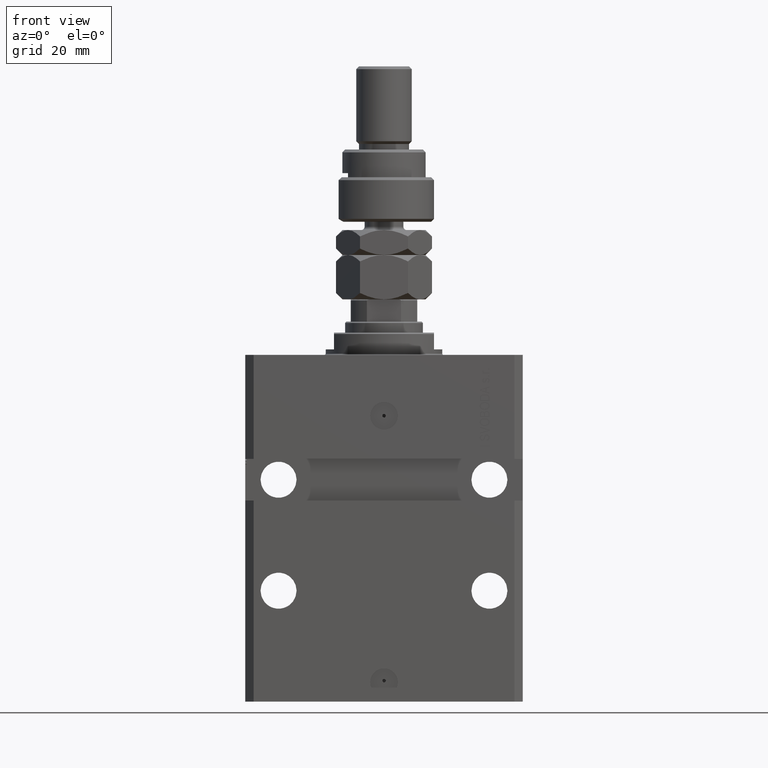
[diagram: clean part render]
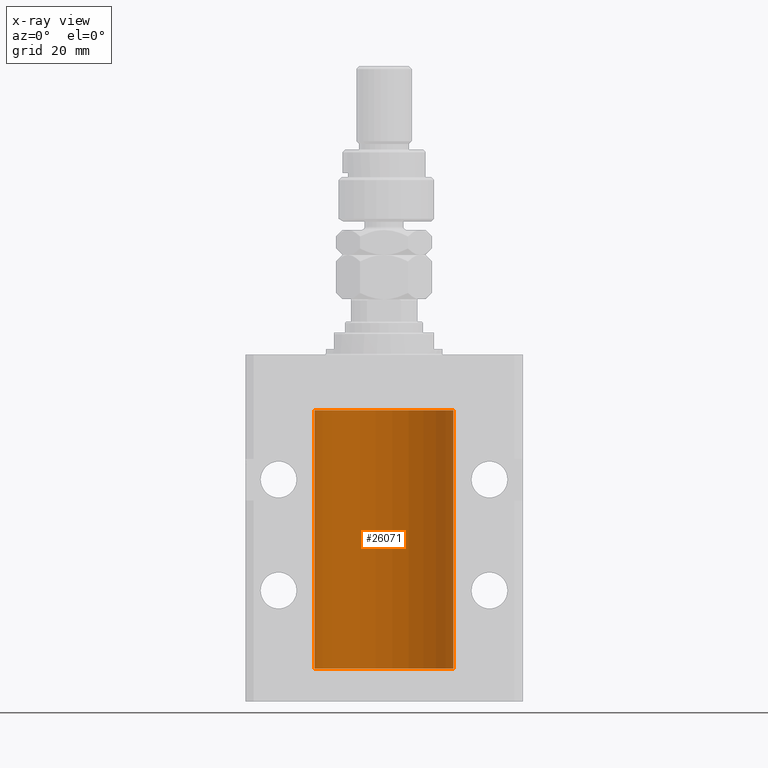
[diagram: x-ray — body ghosted, one internal face saturated and labeled with its STEP entity id]
A machine part, front view, then the same camera in x-ray: the body is ghosted and one INTERNAL B-rep face — a face not visible from any outside direction — is saturated and labeled: STEP entity #26071.
In plain terms, the highlighted cylindrical surface (partial cylindrical patch) has radius 25 mm, axis along (0, 0, 1).
Its self-contained STEP definition (entity closure, byte-faithful):
#46 = CARTESIAN_POINT ( 'NONE',  ( 25.00000000000000355, 0.08261259269783410852, -25.62500000000000355 ) ) ;
#369 = CARTESIAN_POINT ( 'NONE',  ( -25.00000000000000000, 3.061616997868383043E-15, -20.00000000000000355 ) ) ;
#663 = CARTESIAN_POINT ( 'NONE',  ( -24.99957903978827289, 0.1636401650351867743, -24.39126259047981904 ) ) ;
#1288 = VECTOR ( 'NONE', #45036, 1000.000000000000000 ) ;
#1352 = CARTESIAN_POINT ( 'NONE',  ( 25.00000000000008171, 3.486950403907965962E-13, -109.8749999999967315 ) ) ;
#1503 = CARTESIAN_POINT ( 'NONE',  ( 25.00000000000000000, 0.000000000000000000, -113.0999999999999943 ) ) ;
#2140 = B_SPLINE_CURVE_WITH_KNOTS ( 'NONE', 3,
 ( #2824, #34864, #15039, #27285, #19215, #51306 ),
 .UNSPECIFIED., .F., .F.,
 ( 4, 2, 4 ),
 ( 0.0009772773786619218337, 0.001465694572771605777, 0.001954111766881289937 ),
 .UNSPECIFIED. ) ;
#2488 = CARTESIAN_POINT ( 'NONE',  ( 25.00000000000000000, 0.000000000000000000, -20.00000000000000355 ) ) ;
#2724 = VERTEX_POINT ( 'NONE', #16818 ) ;
#2824 = CARTESIAN_POINT ( 'NONE',  ( 24.99218627891505307, 0.6250000000082391871, -110.4999999999990763 ) ) ;
#3325 = CARTESIAN_POINT ( 'NONE',  ( -25.00000000000000000, 3.061616997868383043E-15, -113.0999999999999943 ) ) ;
#3931 = CARTESIAN_POINT ( 'NONE',  ( 24.99218627891505307, 0.6250000000082325258, -24.99999999999907629 ) ) ;
#3968 = VERTEX_POINT ( 'NONE', #42431 ) ;
#3969 = CARTESIAN_POINT ( 'NONE',  ( 24.99711042419772511, 0.3844422150124162108, -110.9994823321251971 ) ) ;
#4136 = CARTESIAN_POINT ( 'NONE',  ( -25.00000000000008171, 3.517566575222595158E-13, -111.1250000000032827 ) ) ;
#4656 = CARTESIAN_POINT ( 'NONE',  ( -24.99999999999998934, 0.1631672031814573320, -25.62499999999985079 ) ) ;
#4817 = ORIENTED_EDGE ( 'NONE', *, *, #8601, .T. ) ;
#5097 = VERTEX_POINT ( 'NONE', #2488 ) ;
#7309 = B_SPLINE_CURVE_WITH_KNOTS ( 'NONE', 3,
 ( #3931, #24491, #19814, #43816, #20325, #11727 ),
 .UNSPECIFIED., .F., .F.,
 ( 4, 2, 4 ),
 ( 0.0009772773786619174969, 0.001465694572771606211, 0.001954111766881294707 ),
 .UNSPECIFIED. ) ;
#7356 = CARTESIAN_POINT ( 'NONE',  ( 25.00000000000000355, 0.08261259269783381709, -111.1250000000000142 ) ) ;
#7550 = CARTESIAN_POINT ( 'NONE',  ( 25.00000000000000000, 0.000000000000000000, -113.0999999999999943 ) ) ;
#7608 = B_SPLINE_CURVE_WITH_KNOTS ( 'NONE', 3,
 ( #51414, #46, #12003, #15924, #43836, #34974, #15660, #31560 ),
 .UNSPECIFIED., .F., .F.,
 ( 4, 2, 2, 4 ),
 ( 3.236698380392818496E-18, 0.0002443193446654800247, 0.0004886386893309567969, 0.0009772773786619174969 ),
 .UNSPECIFIED. ) ;
#7611 = CARTESIAN_POINT ( 'NONE',  ( 24.99218627891524136, 0.6250000000003219647, -110.6631061550482826 ) ) ;
#7912 = LINE ( 'NONE', #40953, #40396 ) ;
#8055 = EDGE_CURVE ( 'NONE', #2724, #41432, #9589, .T. ) ;
#8143 = DIRECTION ( 'NONE',  ( -0.000000000000000000, -0.000000000000000000, 1.000000000000000000 ) ) ;
#8556 = CARTESIAN_POINT ( 'NONE',  ( -24.99402840204668408, 0.5587119681668532012, -25.32511555871104747 ) ) ;
#8601 = EDGE_CURVE ( 'NONE', #41432, #18971, #2140, .T. ) ;
#8730 = CARTESIAN_POINT ( 'NONE',  ( -24.99218772708281477, 0.6249420913990341164, -24.83671206966754852 ) ) ;
#9589 = B_SPLINE_CURVE_WITH_KNOTS ( 'NONE', 3,
 ( #39170, #7356, #27924, #22726, #3969, #19603, #7611, #34737 ),
 .UNSPECIFIED., .F., .F.,
 ( 4, 2, 2, 4 ),
 ( 2.356374505740030593E-18, 0.0002443193446654823016, 0.0004886386893309623263, 0.0009772773786619218337 ),
 .UNSPECIFIED. ) ;
#9598 = VECTOR ( 'NONE', #23444, 1000.000000000000000 ) ;
#10096 = B_SPLINE_CURVE_WITH_KNOTS ( 'NONE', 3,
 ( #18810, #34716, #22971, #50633, #25867, #21950, #35498, #19835, #31820, #35748, #39666, #19065 ),
 .UNSPECIFIED., .F., .F.,
 ( 4, 2, 2, 2, 2, 4 ),
 ( 1.767227884924492832E-18, 0.0002442639708601802699, 0.0004885279417203586966, 0.0009770558834406861681, 0.001465583825161013640, 0.001954111766881341111 ),
 .UNSPECIFIED. ) ;
#10329 = CARTESIAN_POINT ( 'NONE',  ( -25.00000000000000000, 3.061616997868383043E-15, -113.0999999999999943 ) ) ;
#11268 = VECTOR ( 'NONE', #42271, 1000.000000000000000 ) ;
#11727 = CARTESIAN_POINT ( 'NONE',  ( 25.00000000000008171, 3.486950283966777142E-13, -24.37499999999673150 ) ) ;
#12003 = CARTESIAN_POINT ( 'NONE',  ( 24.99957883295564187, 0.1636780489658729298, -25.60872961334235143 ) ) ;
#12059 = ORIENTED_EDGE ( 'NONE', *, *, #13821, .T. ) ;
#12074 = DIRECTION ( 'NONE',  ( -0.000000000000000000, -0.000000000000000000, 1.000000000000000000 ) ) ;
#12278 = ORIENTED_EDGE ( 'NONE', *, *, #51031, .T. ) ;
#12625 = CARTESIAN_POINT ( 'NONE',  ( -24.99405295648008263, 0.5573304927633336847, -24.67348832933669200 ) ) ;
#13444 = CARTESIAN_POINT ( 'NONE',  ( -25.00000000000000000, -9.603917560234690571E-15, -24.37500000000000000 ) ) ;
#13821 = EDGE_CURVE ( 'NONE', #43799, #27601, #7309, .T. ) ;
#13969 = ORIENTED_EDGE ( 'NONE', *, *, #50933, .F. ) ;
#14353 = ORIENTED_EDGE ( 'NONE', *, *, #44881, .F. ) ;
#14668 = VERTEX_POINT ( 'NONE', #4136 ) ;
#14677 = DIRECTION ( 'NONE',  ( 1.000000000000000000, 0.000000000000000000, 0.000000000000000000 ) ) ;
#15039 = CARTESIAN_POINT ( 'NONE',  ( 24.99403021173655404, 0.5586305782632625672, -110.1747611144148635 ) ) ;
#15351 = VERTEX_POINT ( 'NONE', #28948 ) ;
#15660 = CARTESIAN_POINT ( 'NONE',  ( 24.99218627891525557, 0.6250000000003174128, -25.16310615504829329 ) ) ;
#15924 = CARTESIAN_POINT ( 'NONE',  ( 24.99812887437769504, 0.3150953964769009352, -25.54594609348566436 ) ) ;
#16090 = CARTESIAN_POINT ( 'NONE',  ( 25.00000000000000000, 0.000000000000000000, -113.0999999999999943 ) ) ;
#16117 = DIRECTION ( 'NONE',  ( -0.000000000000000000, -0.000000000000000000, 1.000000000000000000 ) ) ;
#16818 = CARTESIAN_POINT ( 'NONE',  ( 25.00000000000000000, -2.424731304940744339E-15, -111.1250000000000000 ) ) ;
#17442 = ORIENTED_EDGE ( 'NONE', *, *, #22521, .F. ) ;
#17662 = CARTESIAN_POINT ( 'NONE',  ( -25.00000000000008171, 3.517566451145503275E-13, -25.62500000000326850 ) ) ;
#17912 = CIRCLE ( 'NONE', #49568, 25.00000000000000000 ) ;
#18810 = CARTESIAN_POINT ( 'NONE',  ( -25.00000000000000000, -2.540720905424995806E-14, -109.8750000000000000 ) ) ;
#18971 = VERTEX_POINT ( 'NONE', #1352 ) ;
#19006 = CYLINDRICAL_SURFACE ( 'NONE', #39966, 25.00000000000000000 ) ;
#19065 = CARTESIAN_POINT ( 'NONE',  ( -25.00000000000008171, 3.517566575222595158E-13, -111.1250000000032827 ) ) ;
#19215 = CARTESIAN_POINT ( 'NONE',  ( 24.99999999999999645, 0.1631302137355208348, -109.8750000000001563 ) ) ;
#19517 = VERTEX_POINT ( 'NONE', #3325 ) ;
#19603 = CARTESIAN_POINT ( 'NONE',  ( 24.99405112861447265, 0.5574133879603476727, -110.8263877786898064 ) ) ;
#19693 = ORIENTED_EDGE ( 'NONE', *, *, #51464, .T. ) ;
#19814 = CARTESIAN_POINT ( 'NONE',  ( 24.99403021173655404, 0.5586305782632567940, -24.67476111441487063 ) ) ;
#19835 = CARTESIAN_POINT ( 'NONE',  ( -24.99218483271614843, 0.6250578298876445782, -110.6628443277814426 ) ) ;
#20136 = LINE ( 'NONE', #31351, #31776 ) ;
#20325 = CARTESIAN_POINT ( 'NONE',  ( 24.99999999999999645, 0.1631302137355182535, -24.37500000000015277 ) ) ;
#21280 = LINE ( 'NONE', #1503, #1288 ) ;
#21950 = CARTESIAN_POINT ( 'NONE',  ( -24.99405295648007908, 0.5573304927633258021, -110.1734883293366920 ) ) ;
#22521 = EDGE_CURVE ( 'NONE', #27202, #43558, #42168, .T. ) ;
#22726 = CARTESIAN_POINT ( 'NONE',  ( 24.99812887437770570, 0.3150953964769092064, -111.0459460934856821 ) ) ;
#22971 = CARTESIAN_POINT ( 'NONE',  ( -24.99957903978828000, 0.1636401650351726467, -109.8912625904798546 ) ) ;
#23164 = CARTESIAN_POINT ( 'NONE',  ( 0.000000000000000000, 0.000000000000000000, -113.0999999999999943 ) ) ;
#23444 = DIRECTION ( 'NONE',  ( -0.000000000000000000, -0.000000000000000000, 1.000000000000000000 ) ) ;
#24126 = EDGE_CURVE ( 'NONE', #3968, #14668, #10096, .T. ) ;
#24160 = EDGE_CURVE ( 'NONE', #15351, #43799, #7608, .T. ) ;
#24491 = CARTESIAN_POINT ( 'NONE',  ( 24.99218627891526268, 0.6249999999996038724, -24.83696777940135192 ) ) ;
#24597 = CARTESIAN_POINT ( 'NONE',  ( 25.00000000000008171, 3.486950283966777142E-13, -24.37499999999673150 ) ) ;
#24840 = EDGE_CURVE ( 'NONE', #27202, #25051, #26163, .T. ) ;
#25051 = VERTEX_POINT ( 'NONE', #17662 ) ;
#25422 = AXIS2_PLACEMENT_3D ( 'NONE', #49650, #46507, #14677 ) ;
#25867 = CARTESIAN_POINT ( 'NONE',  ( -24.99711159039963704, 0.3843660423108738455, -110.0004619305507561 ) ) ;
#25976 = DIRECTION ( 'NONE',  ( -0.000000000000000000, -0.000000000000000000, 1.000000000000000000 ) ) ;
#26071 = ADVANCED_FACE ( 'NONE', ( #43774 ), #19006, .F. ) ;
#26163 = B_SPLINE_CURVE_WITH_KNOTS ( 'NONE', 3,
 ( #37402, #44199, #663, #32441, #48364, #12625, #8730, #36630, #8556, #32524, #4656, #47238 ),
 .UNSPECIFIED., .F., .F.,
 ( 4, 2, 2, 2, 2, 4 ),
 ( 4.396951630244787669E-19, 0.0002442639708601663379, 0.0004885279417203322420, 0.0009770558834406712061, 0.001465583825161009953, 0.001954111766881348917 ),
 .UNSPECIFIED. ) ;
#27173 = CARTESIAN_POINT ( 'NONE',  ( 24.99218627891505307, 0.6250000000082391871, -110.4999999999990763 ) ) ;
#27202 = VERTEX_POINT ( 'NONE', #13444 ) ;
#27282 = VECTOR ( 'NONE', #25976, 1000.000000000000000 ) ;
#27285 = CARTESIAN_POINT ( 'NONE',  ( 24.99815573945175373, 0.3253059702579679247, -109.9414084843269279 ) ) ;
#27601 = VERTEX_POINT ( 'NONE', #24597 ) ;
#27924 = CARTESIAN_POINT ( 'NONE',  ( 24.99957883295564187, 0.1636780489658792026, -111.1087296133423479 ) ) ;
#28160 = ORIENTED_EDGE ( 'NONE', *, *, #24160, .T. ) ;
#28948 = CARTESIAN_POINT ( 'NONE',  ( 25.00000000000000000, 2.149100713798383821E-15, -25.62500000000000355 ) ) ;
#30256 = CARTESIAN_POINT ( 'NONE',  ( -25.00000000000000000, 3.061616997868383043E-15, -113.0999999999999943 ) ) ;
#30674 = ORIENTED_EDGE ( 'NONE', *, *, #43584, .F. ) ;
#31351 = CARTESIAN_POINT ( 'NONE',  ( 25.00000000000000000, 0.000000000000000000, -113.0999999999999943 ) ) ;
#31560 = CARTESIAN_POINT ( 'NONE',  ( 24.99218627891505307, 0.6250000000082325258, -24.99999999999907629 ) ) ;
#31776 = VECTOR ( 'NONE', #8143, 1000.000000000000000 ) ;
#31820 = CARTESIAN_POINT ( 'NONE',  ( -24.99402840204668408, 0.5587119681668493154, -110.8251155587110475 ) ) ;
#32252 = ORIENTED_EDGE ( 'NONE', *, *, #24840, .T. ) ;
#32441 = CARTESIAN_POINT ( 'NONE',  ( -24.99812965334069403, 0.3150303239408847600, -24.45401901831676383 ) ) ;
#32524 = CARTESIAN_POINT ( 'NONE',  ( -24.99815474281801997, 0.3253832813992120210, -25.55855609393753269 ) ) ;
#32676 = CARTESIAN_POINT ( 'NONE',  ( 0.000000000000000000, 0.000000000000000000, -20.00000000000000355 ) ) ;
#33965 = EDGE_CURVE ( 'NONE', #18971, #15351, #20136, .T. ) ;
#34298 = VERTEX_POINT ( 'NONE', #16090 ) ;
#34716 = CARTESIAN_POINT ( 'NONE',  ( -25.00000000000000000, 0.08259386895069686929, -109.8749999999999574 ) ) ;
#34737 = CARTESIAN_POINT ( 'NONE',  ( 24.99218627891505307, 0.6250000000082391871, -110.4999999999990763 ) ) ;
#34864 = CARTESIAN_POINT ( 'NONE',  ( 24.99218627891526268, 0.6249999999996124211, -110.3369677794013626 ) ) ;
#34974 = CARTESIAN_POINT ( 'NONE',  ( 24.99405112861446909, 0.5574133879603399011, -25.32638777868982416 ) ) ;
#35204 = LINE ( 'NONE', #30256, #11268 ) ;
#35498 = CARTESIAN_POINT ( 'NONE',  ( -24.99218772708281122, 0.6249420913990271220, -110.3367120696675414 ) ) ;
#35748 = CARTESIAN_POINT ( 'NONE',  ( -24.99815474281802352, 0.3253832813992116324, -111.0585560939375114 ) ) ;
#36347 = DIRECTION ( 'NONE',  ( 0.000000000000000000, 0.000000000000000000, 1.000000000000000000 ) ) ;
#36630 = CARTESIAN_POINT ( 'NONE',  ( -24.99218483271614843, 0.6250578298876515726, -25.16284432778144975 ) ) ;
#37402 = CARTESIAN_POINT ( 'NONE',  ( -25.00000000000000000, -9.603917560234690571E-15, -24.37500000000000000 ) ) ;
#39170 = CARTESIAN_POINT ( 'NONE',  ( 25.00000000000000000, -2.424731304940744339E-15, -111.1250000000000000 ) ) ;
#39666 = CARTESIAN_POINT ( 'NONE',  ( -24.99999999999998579, 0.1631672031814571655, -111.1249999999998153 ) ) ;
#39966 = AXIS2_PLACEMENT_3D ( 'NONE', #23164, #16117, #47188 ) ;
#40396 = VECTOR ( 'NONE', #12074, 1000.000000000000000 ) ;
#40775 = DIRECTION ( 'NONE',  ( 1.000000000000000000, 0.000000000000000000, 0.000000000000000000 ) ) ;
#40953 = CARTESIAN_POINT ( 'NONE',  ( -25.00000000000000000, 3.061616997868383043E-15, -113.0999999999999943 ) ) ;
#41432 = VERTEX_POINT ( 'NONE', #27173 ) ;
#42168 = LINE ( 'NONE', #10329, #27282 ) ;
#42271 = DIRECTION ( 'NONE',  ( -0.000000000000000000, -0.000000000000000000, 1.000000000000000000 ) ) ;
#42431 = CARTESIAN_POINT ( 'NONE',  ( -25.00000000000000000, -2.540720905424995806E-14, -109.8750000000000000 ) ) ;
#43406 = ORIENTED_EDGE ( 'NONE', *, *, #33965, .T. ) ;
#43558 = VERTEX_POINT ( 'NONE', #369 ) ;
#43584 = EDGE_CURVE ( 'NONE', #19517, #14668, #7912, .T. ) ;
#43774 = FACE_OUTER_BOUND ( 'NONE', #44707, .T. ) ;
#43799 = VERTEX_POINT ( 'NONE', #51345 ) ;
#43816 = CARTESIAN_POINT ( 'NONE',  ( 24.99815573945175373, 0.3253059702579643164, -24.44140848432692081 ) ) ;
#43836 = CARTESIAN_POINT ( 'NONE',  ( 24.99711042419772156, 0.3844422150124102711, -25.49948233212518289 ) ) ;
#44199 = CARTESIAN_POINT ( 'NONE',  ( -25.00000000000001421, 0.08259386895071110790, -24.37500000000000000 ) ) ;
#44323 = LINE ( 'NONE', #7550, #9598 ) ;
#44707 = EDGE_LOOP ( 'NONE', ( #30674, #14353, #12278, #50720, #4817, #43406, #28160, #12059, #19693, #47297, #17442, #32252, #13969, #49639 ) ) ;
#44881 = EDGE_CURVE ( 'NONE', #34298, #19517, #47920, .T. ) ;
#45036 = DIRECTION ( 'NONE',  ( -0.000000000000000000, -0.000000000000000000, 1.000000000000000000 ) ) ;
#46507 = DIRECTION ( 'NONE',  ( 0.000000000000000000, 0.000000000000000000, 1.000000000000000000 ) ) ;
#47188 = DIRECTION ( 'NONE',  ( 1.000000000000000000, 0.000000000000000000, 0.000000000000000000 ) ) ;
#47238 = CARTESIAN_POINT ( 'NONE',  ( -25.00000000000008171, 3.517566451145503275E-13, -25.62500000000326850 ) ) ;
#47297 = ORIENTED_EDGE ( 'NONE', *, *, #47443, .T. ) ;
#47443 = EDGE_CURVE ( 'NONE', #5097, #43558, #17912, .T. ) ;
#47920 = CIRCLE ( 'NONE', #25422, 25.00000000000000000 ) ;
#48364 = CARTESIAN_POINT ( 'NONE',  ( -24.99711159039964414, 0.3843660423108813950, -24.50046193055078803 ) ) ;
#49568 = AXIS2_PLACEMENT_3D ( 'NONE', #32676, #36347, #40775 ) ;
#49639 = ORIENTED_EDGE ( 'NONE', *, *, #24126, .T. ) ;
#49650 = CARTESIAN_POINT ( 'NONE',  ( 0.000000000000000000, 0.000000000000000000, -113.0999999999999943 ) ) ;
#50633 = CARTESIAN_POINT ( 'NONE',  ( -24.99812965334069759, 0.3150303239408709932, -109.9540190183167852 ) ) ;
#50720 = ORIENTED_EDGE ( 'NONE', *, *, #8055, .T. ) ;
#50933 = EDGE_CURVE ( 'NONE', #3968, #25051, #35204, .T. ) ;
#51031 = EDGE_CURVE ( 'NONE', #34298, #2724, #44323, .T. ) ;
#51306 = CARTESIAN_POINT ( 'NONE',  ( 25.00000000000008171, 3.486950403907965962E-13, -109.8749999999967315 ) ) ;
#51345 = CARTESIAN_POINT ( 'NONE',  ( 24.99218627891505307, 0.6250000000082325258, -24.99999999999907629 ) ) ;
#51414 = CARTESIAN_POINT ( 'NONE',  ( 25.00000000000000000, 2.149100713798383821E-15, -25.62500000000000355 ) ) ;
#51464 = EDGE_CURVE ( 'NONE', #27601, #5097, #21280, .T. ) ;